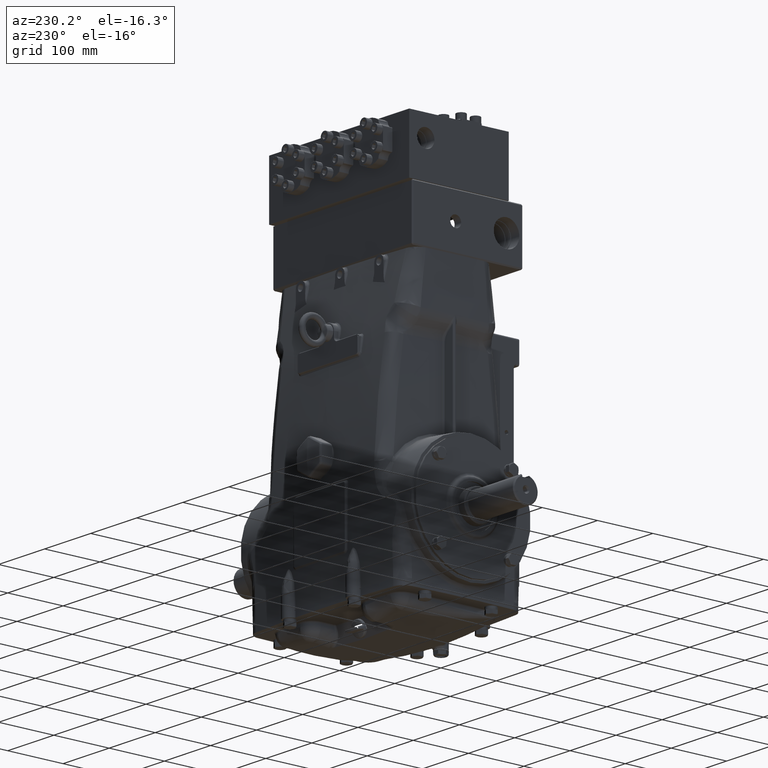
[diagram: clean part render]
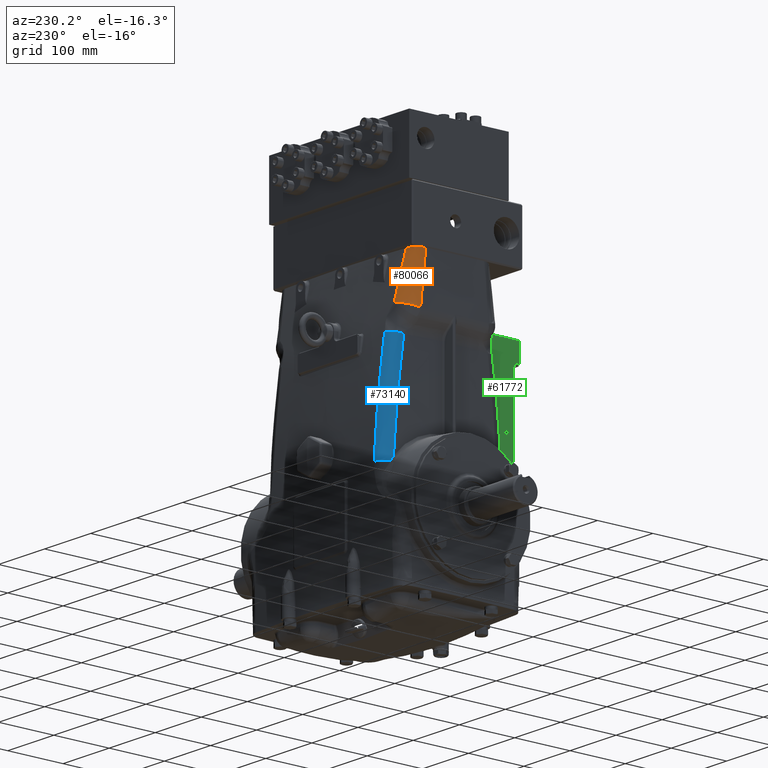
[diagram: same view with three faces highlighted in distinct colors, each labeled with its STEP entity id]
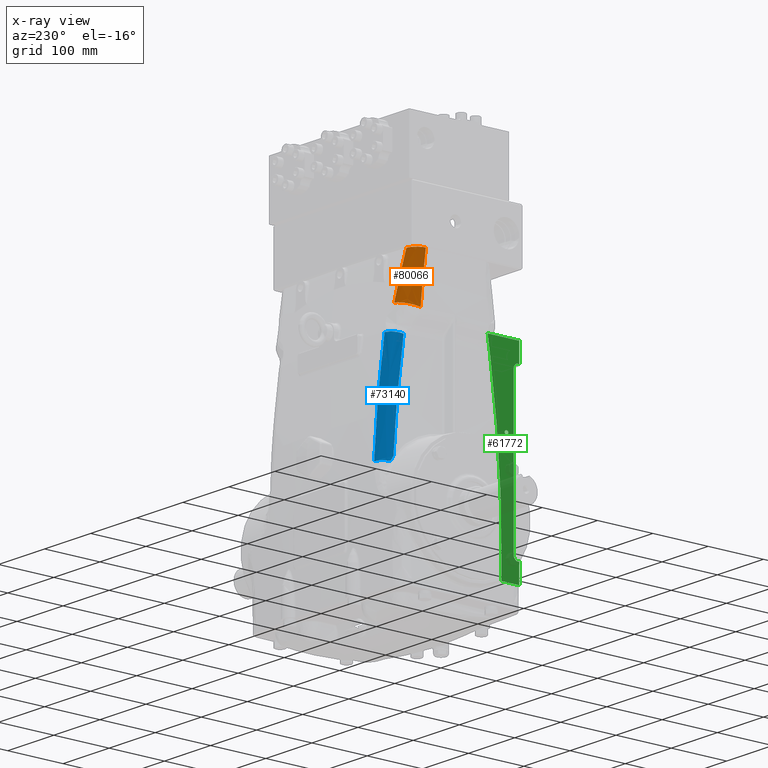
[diagram: x-ray of the same camera — body ghosted, the three highlighted faces saturated]
A machine part, auxiliary view with three faces highlighted in distinct colors.
The next image is the same camera in x-ray (body ghosted, the three faces saturated) — at least one of them is partly hidden behind the body in this view.
Their STEP definitions:

[orange] entity #80066 — the highlighted face is a freeform B-spline surface patch.
#303 = CARTESIAN_POINT ( 'NONE',  ( -5.907774054123752450, 2.293038025342771569, 12.51302298081366082 ) ) ;
#349 = CARTESIAN_POINT ( 'NONE',  ( -5.039213300599810097, 3.433290258325219835, 11.57723637475738698 ) ) ;
#604 = CARTESIAN_POINT ( 'NONE',  ( -5.869573299978710246, 3.410820849078799011, 11.44150744085811056 ) ) ;
#774 = EDGE_CURVE ( 'NONE', #74359, #17577, #12555, .T. ) ;
#1078 = CARTESIAN_POINT ( 'NONE',  ( -5.906987373075787140, 2.317205297167524325, 12.16278999478924128 ) ) ;
#1465 = CARTESIAN_POINT ( 'NONE',  ( -5.907265034704678008, 2.308704891830010375, 12.27424975218368886 ) ) ;
#1864 = CARTESIAN_POINT ( 'NONE',  ( -5.905078663283149787, 2.374872883555778191, 11.61408808050660291 ) ) ;
#2103 = ORIENTED_EDGE ( 'NONE', *, *, #774, .T. ) ;
#2373 = CARTESIAN_POINT ( 'NONE',  ( -5.101086199580545433, 3.058171706944638579, 13.71431557957002312 ) ) ;
#3176 = CARTESIAN_POINT ( 'NONE',  ( -4.926110220598099332, 3.314381504512866616, 12.39349772705937980 ) ) ;
#3565 = CARTESIAN_POINT ( 'NONE',  ( -5.128033741077783425, 3.012976016020138648, 13.93602834202075513 ) ) ;
#3870 = CARTESIAN_POINT ( 'NONE',  ( -4.876417189084683912, 3.476667728146269010, 11.45787284275026963 ) ) ;
#3965 = CARTESIAN_POINT ( 'NONE',  ( -4.926183590047786609, 3.314255839630638079, 12.39418344857252663 ) ) ;
#4467 = CARTESIAN_POINT ( 'NONE',  ( -5.508636203757916405, 2.744925502002867113, 14.76377952755905554 ) ) ;
#5156 = CARTESIAN_POINT ( 'NONE',  ( -5.912418051211069780, 2.144789058062345877, 14.33877539446498872 ) ) ;
#5563 = CARTESIAN_POINT ( 'NONE',  ( -5.912527729218598260, 2.141164361714797071, 14.36090416438256234 ) ) ;
#5611 = CARTESIAN_POINT ( 'NONE',  ( -5.216036395943292270, 3.382636811437145230, 11.54722049156790220 ) ) ;
#5878 = CARTESIAN_POINT ( 'NONE',  ( -5.873273453009383083, 3.331143079454431444, 11.91818957244767319 ) ) ;
#6008 = CARTESIAN_POINT ( 'NONE',  ( -5.076690051837042361, 3.425169474249933455, 11.57129412149316217 ) ) ;
#6094 = B_SPLINE_CURVE_WITH_KNOTS ( 'NONE', 3,
 ( #47816, #53509, #22716, #47417, #72124, #10543, #59976, #4467, #69221, #37626, #63155, #7651, #6845, #74497, #20215, #12536, #74107, #37232, #44514, #44917, #62752, #32349 ),
 .UNSPECIFIED., .F., .F.,
 ( 4, 1, 1, 2, 2, 1, 1, 1, 2, 2, 1, 2, 2, 4 ),
 ( 0.000000000000000000, 0.1250000000000143496, 0.1875000000000213440, 0.2187500000000246192, 0.2500000000000278666, 0.3750000000000383582, 0.4375000000000436873, 0.4687500000000462963, 0.4843750000000466849, 0.5000000000000469624, 0.6250000000000363043, 0.6875000000000304201, 0.7500000000000244249, 1.000000000000000000 ),
 .UNSPECIFIED. ) ;
#6272 = CARTESIAN_POINT ( 'NONE',  ( -5.912206697166975111, 2.151948128830377005, 14.30657796966575823 ) ) ;
#6353 = CARTESIAN_POINT ( 'NONE',  ( -5.907925864761807588, 2.288339149584246890, 12.59590867641229117 ) ) ;
#6400 = CARTESIAN_POINT ( 'NONE',  ( -5.263803864981984937, 3.363040057261277305, 11.53814410467326823 ) ) ;
#6657 = CARTESIAN_POINT ( 'NONE',  ( -5.185264604426030211, 2.772759438202923921, 15.09542930748762579 ) ) ;
#6740 = CARTESIAN_POINT ( 'NONE',  ( -5.908673567012193040, 2.265077751738842515, 13.03242445659455662 ) ) ;
#6845 = CARTESIAN_POINT ( 'NONE',  ( -5.689846565799667744, 2.602427342356467221, 14.76377952755905554 ) ) ;
#7597 = CARTESIAN_POINT ( 'NONE',  ( -5.592879451614143349, 3.139312626955532259, 11.46074997797244421 ) ) ;
#7651 = CARTESIAN_POINT ( 'NONE',  ( -5.681249131111601791, 2.611253824744535823, 14.76377952755905554 ) ) ;
#7945 = CARTESIAN_POINT ( 'NONE',  ( -5.906016381522832148, 2.346702566661738487, 11.84755615944344953 ) ) ;
#7990 = CARTESIAN_POINT ( 'NONE',  ( -5.688995835047186311, 3.033005360567477382, 11.43123038958168713 ) ) ;
#8404 = CARTESIAN_POINT ( 'NONE',  ( -5.397724550042958924, 3.295544224899292995, 11.51066844007581658 ) ) ;
#8453 = CARTESIAN_POINT ( 'NONE',  ( -5.163144061382888950, 2.947077230900319478, 14.25774304390924385 ) ) ;
#8802 = CARTESIAN_POINT ( 'NONE',  ( -5.901349931352192435, 2.484235759319941561, 11.31137959876972943 ) ) ;
#8853 = CARTESIAN_POINT ( 'NONE',  ( -4.925802573597842127, 3.314909096847209913, 12.39061829975569751 ) ) ;
#9201 = CARTESIAN_POINT ( 'NONE',  ( -5.593304604779966382, 3.138888309039629565, 11.46062691665236954 ) ) ;
#9248 = CARTESIAN_POINT ( 'NONE',  ( -4.922970669791747689, 3.319817653929403090, 12.36379080489113313 ) ) ;
#9644 = CARTESIAN_POINT ( 'NONE',  ( -5.132219056089101450, 3.005253596872516031, 13.97374185108037459 ) ) ;
#10038 = CARTESIAN_POINT ( 'NONE',  ( -4.902883452252071450, 3.358076888718606323, 12.15223902093835306 ) ) ;
#10543 = CARTESIAN_POINT ( 'NONE',  ( -5.442054174582965587, 2.776815326288587737, 14.76377952755906264 ) ) ;
#10755 = CARTESIAN_POINT ( 'NONE',  ( -4.875331744708049975, 3.450569755250787463, 11.61702798795573521 ) ) ;
#11241 = CARTESIAN_POINT ( 'NONE',  ( -5.908707279576093541, 2.264023335676851545, 13.05216452785212589 ) ) ;
#11640 = CARTESIAN_POINT ( 'NONE',  ( -5.907927011945045770, 2.288303641488663498, 12.59654247832490093 ) ) ;
#11695 = CARTESIAN_POINT ( 'NONE',  ( -5.236181685047011314, 3.374660730742089942, 11.54343982271980273 ) ) ;
#11730 = EDGE_CURVE ( 'NONE', #74379, #17577, #35956, .T. ) ;
#12045 = CARTESIAN_POINT ( 'NONE',  ( -5.910671417157693952, 2.201717068868905613, 13.90599976739307664 ) ) ;
#12353 = CARTESIAN_POINT ( 'NONE',  ( -5.868324098486308316, 3.436538707100978307, 11.28245888241146133 ) ) ;
#12440 = CARTESIAN_POINT ( 'NONE',  ( -5.907925971269326837, 2.288335852937914972, 12.59596694199654721 ) ) ;
#12483 = CARTESIAN_POINT ( 'NONE',  ( -5.251797107662055986, 3.368195592008888184, 11.54046286192467896 ) ) ;
#12536 = CARTESIAN_POINT ( 'NONE',  ( -5.776433591310897064, 2.499868863154867782, 14.76377952755905199 ) ) ;
#12555 = B_SPLINE_CURVE_WITH_KNOTS ( 'NONE', 3,
 ( #74055, #79723, #44067, #55456, #13278, #50544, #30323, #31121, #74452, #349, #37968, #12890, #18185, #62301, #19752, #61525, #48974, #25052, #6008, #67202, #56622, #80123, #67985, #5611, #11695, #61123, #12483, #37178, #61918, #6400, #49770, #18965, #43669, #75623, #52543, #26225, #8404, #33099, #20569, #14472, #69561, #57814, #58626, #44460, #51343, #77220, #69166, #7597, #13679, #9201, #63504, #7990, #14879, #44864, #21370, #32694, #45270, #8802, #76033 ),
 .UNSPECIFIED., .F., .F.,
 ( 4, 2, 2, 2, 2, 2, 1, 1, 1, 1, 1, 2, 2, 2, 2, 2, 1, 1, 1, 1, 1, 2, 2, 2, 2, 2, 1, 1, 1, 1, 1, 2, 2, 2, 2, 2, 4 ),
 ( 0.000000000000000000, 0.03124999999981475929, 0.06249999999962951858, 0.09374999999944327866, 0.1093749999993506306, 0.1171874999993038485, 0.1210937499992797567, 0.1230468749992682104, 0.1240234374992629507, 0.1245117187492604943, 0.1247558593742593147, 0.1248779296867587318, 0.1249999999992581490, 0.1874999999988087307, 0.2187499999985845212, 0.2343749999984722221, 0.2421874999984165167, 0.2460937499983881782, 0.2480468749983738008, 0.2490234374983683330, 0.2495117187483670285, 0.2497558593733663901, 0.2499999999983657517, 0.3749999999986121102, 0.4374999999987356780, 0.4687499999987971289, 0.4843749999988286592, 0.4921874999988432031, 0.4960937499988504751, 0.4980468749988536947, 0.4990234374988552490, 0.4995117187488564703, 0.4999999999988576915, 0.6249999999991432409, 0.7499999999994287903, 0.8749999999997143396, 1.000000000000000000 ),
 .UNSPECIFIED. ) ;
#12754 = CARTESIAN_POINT ( 'NONE',  ( -5.184315719215649487, 2.805581248994312826, 14.93764455450672379 ) ) ;
#12839 = CARTESIAN_POINT ( 'NONE',  ( -5.912074343975505464, 2.156137704011513279, 14.26832902117558888 ) ) ;
#12890 = CARTESIAN_POINT ( 'NONE',  ( -5.057604005018011328, 3.429471160723429168, 11.57434702457179299 ) ) ;
#13278 = CARTESIAN_POINT ( 'NONE',  ( -4.915704080304775125, 3.450629435604365636, 11.59536634616097750 ) ) ;
#13634 = CARTESIAN_POINT ( 'NONE',  ( -5.907542385340669888, 2.300186964994692662, 12.39651488313214323 ) ) ;
#13679 = CARTESIAN_POINT ( 'NONE',  ( -5.593190843559621150, 3.139001879460302291, 11.46065985045443014 ) ) ;
#14294 = VERTEX_POINT ( 'NONE', #30016 ) ;
#14472 = CARTESIAN_POINT ( 'NONE',  ( -5.540194044629090264, 3.188570483082967311, 11.47544199302100054 ) ) ;
#14879 = CARTESIAN_POINT ( 'NONE',  ( -5.766083086402627345, 2.916811684383569414, 11.40227389794569746 ) ) ;
#14929 = CARTESIAN_POINT ( 'NONE',  ( -5.054124166664509588, 3.128921712657291909, 13.36267617988929501 ) ) ;
#15727 = CARTESIAN_POINT ( 'NONE',  ( -5.008271077049807118, 3.192593720619085307, 13.03782279434682323 ) ) ;
#16538 = CARTESIAN_POINT ( 'NONE',  ( -5.132283268173792656, 3.005132910666354462, 13.97433101746153383 ) ) ;
#17577 = VERTEX_POINT ( 'NONE', #42262 ) ;
#17646 = CARTESIAN_POINT ( 'NONE',  ( -5.903245328280699589, 2.429027964402563633, 11.28052331987952073 ) ) ;
#17733 = CARTESIAN_POINT ( 'NONE',  ( -5.908251518864884311, 2.278240409770262431, 12.78495753448111749 ) ) ;
#18132 = CARTESIAN_POINT ( 'NONE',  ( -5.908690296882330273, 2.264554550061988802, 13.04224164656727680 ) ) ;
#18185 = CARTESIAN_POINT ( 'NONE',  ( -5.063280661080808542, 3.428237002143605494, 11.57344633590616745 ) ) ;
#18435 = CARTESIAN_POINT ( 'NONE',  ( -5.870858134759076918, 3.384637623483602198, 11.60049129678033708 ) ) ;
#18528 = CARTESIAN_POINT ( 'NONE',  ( -5.908809579912570165, 2.260821146657628233, 13.11103706078430342 ) ) ;
#18834 = CARTESIAN_POINT ( 'NONE',  ( -4.986560622080855154, 3.222674255138423316, 12.88575456654492513 ) ) ;
#18916 = CARTESIAN_POINT ( 'NONE',  ( -5.908674393114756285, 2.265051919040012240, 13.03291019620245450 ) ) ;
#18965 = CARTESIAN_POINT ( 'NONE',  ( -5.265639047022845354, 3.362237185801131290, 11.53778733356411301 ) ) ;
#19225 = CARTESIAN_POINT ( 'NONE',  ( -5.874413212496081726, 3.303839795669138546, 12.07691178095931228 ) ) ;
#19309 = CARTESIAN_POINT ( 'NONE',  ( -5.910774986753275506, 2.198382997643469228, 13.93728534927780416 ) ) ;
#19752 = CARTESIAN_POINT ( 'NONE',  ( -5.073484849247628325, 3.425916569317435822, 11.57181081394647038 ) ) ;
#20162 = B_SPLINE_CURVE_WITH_KNOTS ( 'NONE', 3,
 ( #57869, #33952, #34350, #64361, #10038, #77273, #40031, #9248, #78071, #21818, #8853, #46920, #3176, #34748, #3965, #27889, #76883, #22621, #70822, #53411, #21419, #15727, #51812, #47323, #72024, #77673, #71226, #45727, #14929, #59073, #2373, #46520, #46121, #71628, #3565, #58275, #40430, #39628, #65167, #9644, #16538, #21017, #28285, #63970, #8453, #33151, #33555 ),
 .UNSPECIFIED., .F., .F.,
 ( 4, 2, 1, 1, 1, 1, 1, 1, 1, 1, 1, 2, 2, 2, 2, 1, 1, 1, 1, 2, 2, 2, 2, 1, 1, 1, 1, 1, 1, 1, 1, 2, 2, 4 ),
 ( 0.000000000000000000, 0.1250000000017194302, 0.1875000000025781322, 0.2187500000030075109, 0.2343750000032231162, 0.2421875000033309744, 0.2460937500033848480, 0.2480468750034126590, 0.2490234375034266201, 0.2495117187534326708, 0.2497558593784356129, 0.2498779296909361680, 0.2500000000034366954, 0.3750000000016938118, 0.4375000000008223977, 0.4687500000003866352, 0.4843750000001679767, 0.4921875000000585643, 0.4960937500000038303, 0.4980468749999764633, 0.4999999999999490963, 0.6249999999981354915, 0.6874999999972277731, 0.7187499999967739139, 0.7343749999965456521, 0.7421874999964314101, 0.7460937499963758990, 0.7480468749963467001, 0.7490234374963335995, 0.7495117187463269381, 0.7497558593713251618, 0.7498779296838258279, 0.7499999999963264941, 1.000000000000000000 ),
 .UNSPECIFIED. ) ;
#20215 = CARTESIAN_POINT ( 'NONE',  ( -5.731785825640779208, 2.557481735829569391, 14.76377952755905376 ) ) ;
#20569 = CARTESIAN_POINT ( 'NONE',  ( -5.504927850879925977, 3.218393083883500871, 11.48473948779401610 ) ) ;
#20915 = CARTESIAN_POINT ( 'NONE',  ( -5.907053902575530202, 2.315170991092177388, 12.18852758404067060 ) ) ;
#21017 = CARTESIAN_POINT ( 'NONE',  ( -5.132310754040153356, 3.005081227557392154, 13.97458332228943334 ) ) ;
#21370 = CARTESIAN_POINT ( 'NONE',  ( -5.849289238964955118, 2.732127946368104077, 11.36064601824177167 ) ) ;
#21419 = CARTESIAN_POINT ( 'NONE',  ( -5.000078849880988940, 3.204082450246543701, 12.97847648007551236 ) ) ;
#21818 = CARTESIAN_POINT ( 'NONE',  ( -4.925393650704766202, 3.315612048474582352, 12.38678058458093645 ) ) ;
#22482 = CARTESIAN_POINT ( 'NONE',  ( -4.877003644330629939, 3.452992667884452693, 11.60066926512785024 ) ) ;
#22621 = CARTESIAN_POINT ( 'NONE',  ( -4.949172090564206705, 3.277242264015674866, 12.59473463185866926 ) ) ;
#22716 = CARTESIAN_POINT ( 'NONE',  ( -5.304503685460725038, 2.826024602386072448, 14.76377952755905554 ) ) ;
#23717 = CARTESIAN_POINT ( 'NONE',  ( -5.906274471226467426, 2.338935930794351581, 11.91053809308487743 ) ) ;
#23803 = CARTESIAN_POINT ( 'NONE',  ( -5.907932892053354479, 2.288121631570745773, 12.59986493567412857 ) ) ;
#24199 = CARTESIAN_POINT ( 'NONE',  ( -5.911119552194555204, 2.187260002439114004, 14.03590544019855457 ) ) ;
#24521 = CARTESIAN_POINT ( 'NONE',  ( -5.907646200348552590, 2.297148171815059925, 12.38762160986817484 ) ) ;
#24609 = CARTESIAN_POINT ( 'NONE',  ( -5.912411521591919517, 2.145004686772696623, 14.33744058256331222 ) ) ;
#25005 = CARTESIAN_POINT ( 'NONE',  ( -5.911609795965371283, 2.171353261600236007, 14.16385810397932410 ) ) ;
#25052 = CARTESIAN_POINT ( 'NONE',  ( -5.076442746031371023, 3.425227415401971953, 11.57133403669872251 ) ) ;
#25299 = CARTESIAN_POINT ( 'NONE',  ( -5.175307605351867402, 2.904005048904589881, 14.46456208329546733 ) ) ;
#25380 = CARTESIAN_POINT ( 'NONE',  ( -5.909797359077495926, 2.229702078746513383, 13.60556097325805069 ) ) ;
#25776 = CARTESIAN_POINT ( 'NONE',  ( -5.906983724185893792, 2.317316826873552227, 12.16139571799301500 ) ) ;
#26225 = CARTESIAN_POINT ( 'NONE',  ( -5.335439306880227051, 3.331591097413252989, 11.52420057679546694 ) ) ;
#26579 = CARTESIAN_POINT ( 'NONE',  ( -5.903375805935151099, 2.425076266536521086, 11.30089893811133983 ) ) ;
#26751 =( BOUNDED_SURFACE ( )  B_SPLINE_SURFACE ( 2, 3, ( 
 ( #34257, #3870, #10755, #60192, #41941, #66672, #18834, #62168, #55715, #42342, #25299, #74694, #12754, #6657 ),
 ( #12353, #604, #18435, #5878, #19225, #43524, #61389, #79176, #50014, #31372, #73141, #67071, #54921, #43144 ),
 ( #79989, #17646, #68236, #37831, #23717, #24521, #54517, #30579, #67859, #37437, #6272, #36259, #55318, #37044 ) ),
 .UNSPECIFIED., .F., .F., .F. ) 
 B_SPLINE_SURFACE_WITH_KNOTS ( ( 3, 3 ),
 ( 4, 2, 2, 2, 2, 2, 4 ),
 ( 0.000000000000000000, 1.000000000000000000 ),
 ( 0.03185260743067193367, 0.04412556194337072246, 0.05639851645606950431, 0.08094442548146707495, 0.1054903345068646386, 0.1177632890195634274, 0.1300362435322622023 ),
 .UNSPECIFIED. ) 
 GEOMETRIC_REPRESENTATION_ITEM ( )  RATIONAL_B_SPLINE_SURFACE ( (
 ( 1.000000000000000000, 1.000000000000000000, 1.000000000000000000, 1.000000000000000000, 1.000000000000000000, 1.000000000000000000, 1.000000000000000000, 1.000000000000000000, 1.000000000000000000, 1.000000000000000000, 1.000000000000000000, 1.000000000000000000, 1.000000000000000000, 1.000000000000000000),
 ( 0.7423009612072126728, 0.7421802780501942642, 0.7420249435830863494, 0.7418429153053469616, 0.7418027444488081157, 0.7417807243793537175, 0.7418971107712801771, 0.7421054116588654548, 0.7421973114124104098, 0.7421068119988769585, 0.7420386468702881988, 0.7417914812854551343, 0.7416140992102079332, 0.7414750453695108101),
 ( 1.000000000000000000, 1.000000000000000000, 1.000000000000000000, 1.000000000000000000, 1.000000000000000000, 1.000000000000000000, 1.000000000000000000, 1.000000000000000000, 1.000000000000000000, 1.000000000000000000, 1.000000000000000000, 1.000000000000000000, 1.000000000000000000, 1.000000000000000000) ) ) 
 REPRESENTATION_ITEM ( '' )  SURFACE ( )  );
#27889 = CARTESIAN_POINT ( 'NONE',  ( -4.926203589867667709, 3.314221595435139278, 12.39437030249005467 ) ) ;
#28285 = CARTESIAN_POINT ( 'NONE',  ( -5.132329070484742850, 3.005046780940920925, 13.97475148216372531 ) ) ;
#30016 = CARTESIAN_POINT ( 'NONE',  ( -5.183405415249797699, 2.841738081440412511, 14.76377952755909462 ) ) ;
#30272 = CARTESIAN_POINT ( 'NONE',  ( -5.910887622280017517, 2.194752194930855271, 13.97041162654521962 ) ) ;
#30323 = CARTESIAN_POINT ( 'NONE',  ( -4.969121482321285477, 3.445069723862342670, 11.58781616345203958 ) ) ;
#30579 = CARTESIAN_POINT ( 'NONE',  ( -5.909213097416705196, 2.248207726002552587, 13.34996992752380507 ) ) ;
#30670 = CARTESIAN_POINT ( 'NONE',  ( -5.914316301299402667, 2.081233267886914540, 14.67785554985681529 ) ) ;
#31070 = CARTESIAN_POINT ( 'NONE',  ( -5.908673938971610085, 2.265066120374979342, 13.03264317263259819 ) ) ;
#31121 = CARTESIAN_POINT ( 'NONE',  ( -5.005278436745298265, 3.439498342552275378, 11.58243594878231519 ) ) ;
#31372 = CARTESIAN_POINT ( 'NONE',  ( -5.889655872968184269, 2.886672148875563781, 14.29218283121253208 ) ) ;
#31462 = CARTESIAN_POINT ( 'NONE',  ( -5.908434182414926461, 2.272563384559500133, 12.89164449754916575 ) ) ;
#31572 = EDGE_LOOP ( 'NONE', ( #2103, #71474, #67147, #64755 ) ) ;
#32349 = CARTESIAN_POINT ( 'NONE',  ( -5.914849519459009386, 2.062923769285555764, 14.76377952755905376 ) ) ;
#32694 = CARTESIAN_POINT ( 'NONE',  ( -5.868295620743871233, 2.669366735757566111, 11.34750734978512199 ) ) ;
#33019 = CARTESIAN_POINT ( 'NONE',  ( -5.914849519459009386, 2.062923769285555764, 14.76377952755905376 ) ) ;
#33099 = CARTESIAN_POINT ( 'NONE',  ( -5.479555298346567405, 3.238102569896509575, 11.49112732293715489 ) ) ;
#33151 = CARTESIAN_POINT ( 'NONE',  ( -5.180137066221424114, 2.892442693654131869, 14.52066343965347528 ) ) ;
#33458 = CARTESIAN_POINT ( 'NONE',  ( -5.907124578004150806, 2.313008229074265287, 12.21653243246279352 ) ) ;
#33555 = CARTESIAN_POINT ( 'NONE',  ( -5.183405415249797699, 2.841738081440412511, 14.76377952755909462 ) ) ;
#33952 = CARTESIAN_POINT ( 'NONE',  ( -4.878332367497830724, 3.432379729718026073, 11.72482601415763170 ) ) ;
#34257 = CARTESIAN_POINT ( 'NONE',  ( -4.875549008008499996, 3.502405908729313122, 11.29867192287536248 ) ) ;
#34350 = CARTESIAN_POINT ( 'NONE',  ( -4.883125874361775587, 3.410551737334837963, 11.85304194537543765 ) ) ;
#34748 = CARTESIAN_POINT ( 'NONE',  ( -4.926154238370732408, 3.314306107129415757, 12.39390915531052606 ) ) ;
#35956 = B_SPLINE_CURVE_WITH_KNOTS ( 'NONE', 3,
 ( #66756, #30670, #68325, #61867, #67543, #48519, #5563, #73617, #62253, #5156, #24609, #79672, #49326, #12839, #25005, #24199, #30272, #19309, #49716, #74403, #55008, #12045, #74783, #42431, #54598, #80076, #25380, #43620, #74009, #18528, #50104, #11241, #18132, #60674, #48922, #43228, #18916, #31070, #37520, #6740, #31462, #17733, #79270, #73219, #36743, #23803, #67154, #11640, #67943, #61480, #12440, #36345, #37128, #6353, #55800, #303, #13634, #1465, #33458, #20915, #68719, #58173, #56567, #1078, #45619, #63455, #25776, #75174, #44013, #7945, #70324, #39120, #44814, #50492, #38312, #50895, #39529, #62650, #1864, #56970, #26579 ),
 .UNSPECIFIED., .F., .F.,
 ( 4, 2, 1, 1, 1, 1, 1, 1, 2, 2, 1, 1, 1, 1, 1, 1, 1, 1, 2, 2, 1, 1, 1, 1, 1, 1, 1, 1, 1, 1, 1, 2, 2, 2, 1, 1, 1, 1, 1, 1, 1, 1, 1, 2, 2, 1, 1, 1, 1, 1, 1, 1, 1, 2, 2, 1, 1, 1, 1, 1, 1, 1, 2, 2, 4 ),
 ( 0.000000000000000000, 0.06250000000417306467, 0.09375000000626051988, 0.1093750000073052536, 0.1171875000078276413, 0.1210937500080877111, 0.1230468750082188978, 0.1240234375082833046, 0.1245117187583155011, 0.1250000000083477114, 0.1875000000124950605, 0.2187500000145687351, 0.2343750000156064606, 0.2421875000161244351, 0.2460937500163843106, 0.2480468750165142622, 0.2490234375165783498, 0.2495117187666103797, 0.2497558593916264225, 0.2500000000166424097, 0.3750000000251201837, 0.4375000000293599589, 0.4687500000314789861, 0.4843750000325385274, 0.4921875000330675487, 0.4960937500333313377, 0.4980468750334631767, 0.4990234375335290684, 0.4995117187835613204, 0.4997558594085774186, 0.4998779297210862449, 0.4999389648773399641, 0.5000000000335935724, 0.5625000000370895537, 0.5937500000388373778, 0.6093750000397131217, 0.6171875000401509936, 0.6210937500403699296, 0.6230468750404793976, 0.6240234375405242506, 0.6245117187905466771, 0.6247558594155705469, 0.6248779297280825373, 0.6249389648843248768, 0.6250000000405671052, 0.6875000000336500827, 0.7187500000301906278, 0.7343750000284609003, 0.7421875000275949263, 0.7460937500271619394, 0.7480468750269454459, 0.7490234375268360889, 0.7495117187767814659, 0.7497558594017541544, 0.7500000000267267319, 0.8125000000201291206, 0.8437500000168303149, 0.8593750000151799684, 0.8671875000143547396, 0.8710937500139421807, 0.8730468750137347911, 0.8740234375136310963, 0.8745117187635792488, 0.8750000000135274014, 1.000000000000000000 ),
 .UNSPECIFIED. ) ;
#36259 = CARTESIAN_POINT ( 'NONE',  ( -5.913921404336148768, 2.094745928070980590, 14.62084472770812837 ) ) ;
#36345 = CARTESIAN_POINT ( 'NONE',  ( -5.907925908589608532, 2.288337793016503863, 12.59593263261130502 ) ) ;
#36743 = CARTESIAN_POINT ( 'NONE',  ( -5.907946300177029819, 2.287706566398291397, 12.60754454059181207 ) ) ;
#37044 = CARTESIAN_POINT ( 'NONE',  ( -5.915906921647165362, 2.026289427921009079, 14.93580738324496693 ) ) ;
#37128 = CARTESIAN_POINT ( 'NONE',  ( -5.907925882226328085, 2.288338609018522263, 12.59591822003274331 ) ) ;
#37178 = CARTESIAN_POINT ( 'NONE',  ( -5.256284641337158448, 3.366293884187553154, 11.53960024432015175 ) ) ;
#37232 = CARTESIAN_POINT ( 'NONE',  ( -5.835122323459665417, 2.393378446299524676, 14.76377952755905376 ) ) ;
#37437 = CARTESIAN_POINT ( 'NONE',  ( -5.911517264726246168, 2.174410796057816952, 14.14824494702000734 ) ) ;
#37520 = CARTESIAN_POINT ( 'NONE',  ( -5.908673636214894387, 2.265075587733624385, 13.03246514808705747 ) ) ;
#37626 = CARTESIAN_POINT ( 'NONE',  ( -5.636989239988458245, 2.653590017885945063, 14.76377952755905199 ) ) ;
#37831 = CARTESIAN_POINT ( 'NONE',  ( -5.905706997040113038, 2.356122341130363118, 11.75214630435105434 ) ) ;
#37968 = CARTESIAN_POINT ( 'NONE',  ( -5.046427835811078566, 3.431841198207233212, 11.57611074950587948 ) ) ;
#38312 = CARTESIAN_POINT ( 'NONE',  ( -5.905568590761821390, 2.360173326528731685, 11.73278180184143693 ) ) ;
#39120 = CARTESIAN_POINT ( 'NONE',  ( -5.905672257207958076, 2.357060701444123385, 11.75828390509639831 ) ) ;
#39529 = CARTESIAN_POINT ( 'NONE',  ( -5.905557928655715827, 2.360493260507960933, 11.73019312247536305 ) ) ;
#39628 = CARTESIAN_POINT ( 'NONE',  ( -5.131831588451555959, 3.005980297548772828, 13.97019410945438267 ) ) ;
#40031 = CARTESIAN_POINT ( 'NONE',  ( -4.919821522116118118, 3.325392908058514951, 12.33323513837594199 ) ) ;
#40430 = CARTESIAN_POINT ( 'NONE',  ( -5.131309111114502386, 3.006956118024851854, 13.96542980457051364 ) ) ;
#41941 = CARTESIAN_POINT ( 'NONE',  ( -4.897046326653974546, 3.368686379052702851, 12.09363941883155036 ) ) ;
#42262 = CARTESIAN_POINT ( 'NONE',  ( -5.903375805935151099, 2.425076266536521086, 11.30089893811133983 ) ) ;
#42342 = CARTESIAN_POINT ( 'NONE',  ( -5.164541999858275112, 2.936738434533107789, 14.30678451208300217 ) ) ;
#42431 = CARTESIAN_POINT ( 'NONE',  ( -5.910666534261126870, 2.201874150668091890, 13.90450443823717919 ) ) ;
#43144 = CARTESIAN_POINT ( 'NONE',  ( -5.895960417086011596, 2.723600409506862885, 15.08097490665740459 ) ) ;
#43228 = CARTESIAN_POINT ( 'NONE',  ( -5.908675452838605402, 2.265018780512672247, 13.03353315845955862 ) ) ;
#43524 = CARTESIAN_POINT ( 'NONE',  ( -5.877715577694672788, 3.220348943347427273, 12.55273612131199101 ) ) ;
#43620 = CARTESIAN_POINT ( 'NONE',  ( -5.909225665884736856, 2.247756914242586390, 13.33513139633698152 ) ) ;
#43669 = CARTESIAN_POINT ( 'NONE',  ( -5.265899730175354065, 3.362122853462971683, 11.53773661014142071 ) ) ;
#44013 = CARTESIAN_POINT ( 'NONE',  ( -5.906448200662091530, 2.333647360579240715, 11.97100916173336671 ) ) ;
#44067 = CARTESIAN_POINT ( 'NONE',  ( -4.884491138399154941, 3.452667283638722662, 11.59959100200565985 ) ) ;
#44460 = CARTESIAN_POINT ( 'NONE',  ( -5.584699211188659085, 3.147399294075683862, 11.46310489461806625 ) ) ;
#44514 = CARTESIAN_POINT ( 'NONE',  ( -5.845411006186185254, 2.371019325491242391, 14.76377952755905376 ) ) ;
#44814 = CARTESIAN_POINT ( 'NONE',  ( -5.905613202200761691, 2.358834284329041076, 11.74368165415275733 ) ) ;
#44864 = CARTESIAN_POINT ( 'NONE',  ( -5.798189793312924500, 2.855859596083306418, 11.38803072339823785 ) ) ;
#44917 = CARTESIAN_POINT ( 'NONE',  ( -5.891921031949348908, 2.256901848154480028, 14.76377952755904666 ) ) ;
#45270 = CARTESIAN_POINT ( 'NONE',  ( -5.894316964891314292, 2.545416920226685864, 11.32287361090748057 ) ) ;
#45619 = CARTESIAN_POINT ( 'NONE',  ( -5.906985468353179058, 2.317263516150661840, 12.16206202018411453 ) ) ;
#45727 = CARTESIAN_POINT ( 'NONE',  ( -5.028635759224336255, 3.164264603040205515, 13.18275471358236572 ) ) ;
#46121 = CARTESIAN_POINT ( 'NONE',  ( -5.118676420831977047, 3.029335967139364705, 13.85598782958837560 ) ) ;
#46520 = CARTESIAN_POINT ( 'NONE',  ( -5.108710422953373076, 3.045965539333792549, 13.77439635787910888 ) ) ;
#46920 = CARTESIAN_POINT ( 'NONE',  ( -4.926007580662856711, 3.314557404689307152, 12.39253780929991144 ) ) ;
#47323 = CARTESIAN_POINT ( 'NONE',  ( -5.023684900721711699, 3.171134934388645910, 13.14773324124499609 ) ) ;
#47417 = CARTESIAN_POINT ( 'NONE',  ( -5.385453150630775454, 2.800098155554065826, 14.76377952755905376 ) ) ;
#47816 = CARTESIAN_POINT ( 'NONE',  ( -5.183405415249797699, 2.841738081440412511, 14.76377952755909462 ) ) ;
#48519 = CARTESIAN_POINT ( 'NONE',  ( -5.912659975979523530, 2.136786969310013440, 14.38694125500877874 ) ) ;
#48922 = CARTESIAN_POINT ( 'NONE',  ( -5.908677572512333498, 2.264952495141791200, 13.03477871201685723 ) ) ;
#48974 = CARTESIAN_POINT ( 'NONE',  ( -5.076071958719958310, 3.425314219047164155, 11.57139387075943837 ) ) ;
#49326 = CARTESIAN_POINT ( 'NONE',  ( -5.912405410717039622, 2.145206474836610866, 14.33619000024514634 ) ) ;
#49716 = CARTESIAN_POINT ( 'NONE',  ( -5.910719505151603492, 2.200169575731908633, 13.92062736803391942 ) ) ;
#49770 = CARTESIAN_POINT ( 'NONE',  ( -5.265029300852948069, 3.362504326215310257, 11.53790593231965467 ) ) ;
#50014 = CARTESIAN_POINT ( 'NONE',  ( -5.886154691161721964, 2.981703273831198597, 13.81842915313974807 ) ) ;
#50104 = CARTESIAN_POINT ( 'NONE',  ( -5.908741302749783486, 2.262958777949713784, 13.07191532545369661 ) ) ;
#50492 = CARTESIAN_POINT ( 'NONE',  ( -5.905583491758536141, 2.359726135792812762, 11.73641014919317271 ) ) ;
#50544 = CARTESIAN_POINT ( 'NONE',  ( -4.948825239833901435, 3.447401824124947556, 11.59071699442808345 ) ) ;
#50895 = CARTESIAN_POINT ( 'NONE',  ( -5.905562194806917020, 2.360365250773306389, 11.73122838264670875 ) ) ;
#51343 = CARTESIAN_POINT ( 'NONE',  ( -5.589124511149144325, 3.143043226850921190, 11.46183403828906755 ) ) ;
#51812 = CARTESIAN_POINT ( 'NONE',  ( -5.018444413985876373, 3.178418012351344135, 13.11052001769411390 ) ) ;
#51921 = EDGE_CURVE ( 'NONE', #14294, #74379, #6094, .T. ) ;
#52543 = CARTESIAN_POINT ( 'NONE',  ( -5.266111671038387954, 3.362029867289029639, 11.53769536598511714 ) ) ;
#53411 = CARTESIAN_POINT ( 'NONE',  ( -4.984399135822429550, 3.226196166578896740, 12.86374097986380072 ) ) ;
#53509 = CARTESIAN_POINT ( 'NONE',  ( -5.232534852334648434, 2.838158930383748224, 14.76377952755905554 ) ) ;
#54517 = CARTESIAN_POINT ( 'NONE',  ( -5.908122798201683068, 2.282299193488263267, 12.70826722450663482 ) ) ;
#54598 = CARTESIAN_POINT ( 'NONE',  ( -5.910665271862801440, 2.201914760178965036, 13.90411753428069375 ) ) ;
#54921 = CARTESIAN_POINT ( 'NONE',  ( -5.894693119851568852, 2.756471380224183587, 14.92311084807128374 ) ) ;
#55008 = CARTESIAN_POINT ( 'NONE',  ( -5.910678260647441284, 2.201496899145066966, 13.90809238845904972 ) ) ;
#55318 = CARTESIAN_POINT ( 'NONE',  ( -5.914956072182287805, 2.059530228165542542, 14.77778041190654434 ) ) ;
#55456 = CARTESIAN_POINT ( 'NONE',  ( -4.902873697673988396, 3.451522551926476279, 11.59711451997821108 ) ) ;
#55715 = CARTESIAN_POINT ( 'NONE',  ( -5.120710757001378788, 3.034264079367035016, 13.83342152667016833 ) ) ;
#55800 = CARTESIAN_POINT ( 'NONE',  ( -5.907925995699470967, 2.288335096773560728, 12.59598016377677077 ) ) ;
#56567 = CARTESIAN_POINT ( 'NONE',  ( -5.906991816552033647, 2.317069474539982465, 12.16449026980165726 ) ) ;
#56622 = CARTESIAN_POINT ( 'NONE',  ( -5.117759314549691574, 3.415532350876082646, 11.56466308199369131 ) ) ;
#56970 = CARTESIAN_POINT ( 'NONE',  ( -5.904359374784609926, 2.396358114100670456, 11.47133474665070274 ) ) ;
#57751 = EDGE_CURVE ( 'NONE', #74359, #14294, #20162, .T. ) ;
#57814 = CARTESIAN_POINT ( 'NONE',  ( -5.567744144523757654, 3.163609631545833079, 11.46789381573073463 ) ) ;
#57869 = CARTESIAN_POINT ( 'NONE',  ( -4.877003644330629939, 3.452992667884452693, 11.60066926512785024 ) ) ;
#58173 = CARTESIAN_POINT ( 'NONE',  ( -5.907000699998951276, 2.316797915951817721, 12.16789749022835032 ) ) ;
#58275 = CARTESIAN_POINT ( 'NONE',  ( -5.130244085217400496, 3.008931348717934107, 13.95578467933275135 ) ) ;
#58626 = CARTESIAN_POINT ( 'NONE',  ( -5.575704147121677501, 3.156121584029052851, 11.46566606688705647 ) ) ;
#59073 = CARTESIAN_POINT ( 'NONE',  ( -5.075266311196011237, 3.098027341864302286, 13.51699441553819980 ) ) ;
#59976 = CARTESIAN_POINT ( 'NONE',  ( -5.453332407580689711, 2.771675151372924528, 14.76377952755905376 ) ) ;
#60192 = CARTESIAN_POINT ( 'NONE',  ( -4.885991698342642131, 3.396556321547359314, 11.93490414467519223 ) ) ;
#60674 = CARTESIAN_POINT ( 'NONE',  ( -5.908681812763847851, 2.264819891135029462, 13.03726833530383367 ) ) ;
#61123 = CARTESIAN_POINT ( 'NONE',  ( -5.242603062963129723, 3.372041015670286690, 11.54222194840788340 ) ) ;
#61389 = CARTESIAN_POINT ( 'NONE',  ( -5.879767995214635334, 3.162587132995285710, 12.86949753468266167 ) ) ;
#61480 = CARTESIAN_POINT ( 'NONE',  ( -5.907926101290532195, 2.288331828485016040, 12.59603828090800448 ) ) ;
#61525 = CARTESIAN_POINT ( 'NONE',  ( -5.075207988324224040, 3.425516005694789978, 11.57153321256096312 ) ) ;
#61867 = CARTESIAN_POINT ( 'NONE',  ( -5.913229139133507672, 2.117843687238893935, 14.49218836720061887 ) ) ;
#61918 = CARTESIAN_POINT ( 'NONE',  ( -5.261329206356101906, 3.364117242922211037, 11.53862433614557403 ) ) ;
#62168 = CARTESIAN_POINT ( 'NONE',  ( -5.076100908187021865, 3.098377580161391975, 13.51780179869366805 ) ) ;
#62253 = CARTESIAN_POINT ( 'NONE',  ( -5.912433373583989571, 2.144282988386367883, 14.34189929391718721 ) ) ;
#62301 = CARTESIAN_POINT ( 'NONE',  ( -5.070057791467116104, 3.426705746314662626, 11.57236170227895933 ) ) ;
#62650 = CARTESIAN_POINT ( 'NONE',  ( -5.905555514685309149, 2.360565690588433352, 11.72960788464305715 ) ) ;
#62752 = CARTESIAN_POINT ( 'NONE',  ( -5.911966328789128866, 2.161811155246353255, 14.76377952755905376 ) ) ;
#63155 = CARTESIAN_POINT ( 'NONE',  ( -5.668229812852135119, 2.624319720700929448, 14.76377952755905376 ) ) ;
#63455 = CARTESIAN_POINT ( 'NONE',  ( -5.906984198454624746, 2.317302330869617233, 12.16157686259979265 ) ) ;
#63504 = CARTESIAN_POINT ( 'NONE',  ( -5.644013583242527332, 3.088221399019464464, 11.44593957923513727 ) ) ;
#63970 = CARTESIAN_POINT ( 'NONE',  ( -5.132332338285701567, 3.005040636140080768, 13.97478147962561579 ) ) ;
#64361 = CARTESIAN_POINT ( 'NONE',  ( -4.895443100790449087, 3.375888775398935504, 12.05148655908797473 ) ) ;
#64755 = ORIENTED_EDGE ( 'NONE', *, *, #57751, .F. ) ;
#65074 = FACE_OUTER_BOUND ( 'NONE', #31572, .T. ) ;
#65167 = CARTESIAN_POINT ( 'NONE',  ( -5.132090318331822054, 3.005495338389349236, 13.97256169784786728 ) ) ;
#66672 = CARTESIAN_POINT ( 'NONE',  ( -4.941627852679784993, 3.282857233909547645, 12.56932634269046822 ) ) ;
#66756 = CARTESIAN_POINT ( 'NONE',  ( -5.914849519459009386, 2.062923769285555764, 14.76377952755905376 ) ) ;
#67071 = CARTESIAN_POINT ( 'NONE',  ( -5.893380228565853862, 2.789413303507760400, 14.76564271353230318 ) ) ;
#67147 = ORIENTED_EDGE ( 'NONE', *, *, #51921, .F. ) ;
#67154 = CARTESIAN_POINT ( 'NONE',  ( -5.907928574215944195, 2.288255284748716978, 12.59741784540901932 ) ) ;
#67202 = CARTESIAN_POINT ( 'NONE',  ( -5.076857798979546921, 3.425130134077910338, 11.57126704074311796 ) ) ;
#67543 = CARTESIAN_POINT ( 'NONE',  ( -5.912946418877834454, 2.127280557214457968, 14.44140605342365902 ) ) ;
#67859 = CARTESIAN_POINT ( 'NONE',  ( -5.909828517264556602, 2.228966093811306948, 13.67102729412266626 ) ) ;
#67943 = CARTESIAN_POINT ( 'NONE',  ( -5.907926379979780762, 2.288323202396558287, 12.59619183929495279 ) ) ;
#67985 = CARTESIAN_POINT ( 'NONE',  ( -5.201430264641836665, 3.388111401472180706, 11.54991055314138038 ) ) ;
#68236 = CARTESIAN_POINT ( 'NONE',  ( -5.904205780340020304, 2.400825583751367898, 11.43709204300554738 ) ) ;
#68325 = CARTESIAN_POINT ( 'NONE',  ( -5.913842805634069499, 2.097251884575155323, 14.59921726255442209 ) ) ;
#68719 = CARTESIAN_POINT ( 'NONE',  ( -5.907018452873892933, 2.316255145442352337, 12.17473861268919322 ) ) ;
#69166 = CARTESIAN_POINT ( 'NONE',  ( -5.592412044105786073, 3.139778777614894434, 11.46088521376881886 ) ) ;
#69221 = CARTESIAN_POINT ( 'NONE',  ( -5.571059439894776588, 2.707263438736309702, 14.76377952755904843 ) ) ;
#69561 = CARTESIAN_POINT ( 'NONE',  ( -5.551485303177223329, 3.178585887497241025, 11.47239008380356573 ) ) ;
#70324 = CARTESIAN_POINT ( 'NONE',  ( -5.905788906318869103, 2.353554015934743227, 11.78772537108157081 ) ) ;
#70822 = CARTESIAN_POINT ( 'NONE',  ( -4.974885663119673396, 3.239787407783178974, 12.79252689245304175 ) ) ;
#71226 = CARTESIAN_POINT ( 'NONE',  ( -5.028258199564915820, 3.164788230447873829, 13.18008822393310808 ) ) ;
#71474 = ORIENTED_EDGE ( 'NONE', *, *, #11730, .F. ) ;
#71628 = CARTESIAN_POINT ( 'NONE',  ( -5.123291821856843065, 3.021440918803970366, 13.89465111568527433 ) ) ;
#72024 = CARTESIAN_POINT ( 'NONE',  ( -5.026343584094931316, 3.167444313965634084, 13.16655596126323680 ) ) ;
#72124 = CARTESIAN_POINT ( 'NONE',  ( -5.419499884244285859, 2.786464736018629207, 14.76377952755905376 ) ) ;
#73141 = CARTESIAN_POINT ( 'NONE',  ( -5.890863126342956946, 2.854545386397249196, 14.45003760087050004 ) ) ;
#73219 = CARTESIAN_POINT ( 'NONE',  ( -5.907992197049621197, 2.286285400491313347, 12.63404544797705498 ) ) ;
#73617 = CARTESIAN_POINT ( 'NONE',  ( -5.912464364493356328, 2.143259104953934013, 14.34818444621476452 ) ) ;
#74009 = CARTESIAN_POINT ( 'NONE',  ( -5.908947054855834935, 2.256511820642408406, 13.18776109195536606 ) ) ;
#74055 = CARTESIAN_POINT ( 'NONE',  ( -4.877003644330629939, 3.452992667884452693, 11.60066926512785024 ) ) ;
#74107 = CARTESIAN_POINT ( 'NONE',  ( -5.812756774880258881, 2.436713598622665788, 14.76377952755905554 ) ) ;
#74359 = VERTEX_POINT ( 'NONE', #22482 ) ;
#74379 = VERTEX_POINT ( 'NONE', #33019 ) ;
#74403 = CARTESIAN_POINT ( 'NONE',  ( -5.910691973858821058, 2.201055658973258833, 13.91227466675942814 ) ) ;
#74452 = CARTESIAN_POINT ( 'NONE',  ( -5.018282100622911912, 3.437291305666584584, 11.58047033662795222 ) ) ;
#74497 = CARTESIAN_POINT ( 'NONE',  ( -5.694137710337813019, 2.597920194406839300, 14.76377952755905554 ) ) ;
#74694 = CARTESIAN_POINT ( 'NONE',  ( -5.185325325571241706, 2.838356162815268036, 14.78019648475138581 ) ) ;
#74783 = CARTESIAN_POINT ( 'NONE',  ( -5.910668487044859809, 2.201811330815916623, 13.90510261223999322 ) ) ;
#75174 = CARTESIAN_POINT ( 'NONE',  ( -5.906779215138526773, 2.323567532111388001, 12.08332560752385731 ) ) ;
#75623 = CARTESIAN_POINT ( 'NONE',  ( -5.266073377488568852, 3.362046666776338011, 11.53770281779277873 ) ) ;
#76033 = CARTESIAN_POINT ( 'NONE',  ( -5.903375805935151099, 2.425076266536521086, 11.30089893811133983 ) ) ;
#76883 = CARTESIAN_POINT ( 'NONE',  ( -4.935799229983607539, 3.297793748164550287, 12.48400756346530649 ) ) ;
#77220 = CARTESIAN_POINT ( 'NONE',  ( -5.591319188086771419, 3.140866665287144421, 11.46120107509633890 ) ) ;
#77273 = CARTESIAN_POINT ( 'NONE',  ( -4.913802699992940504, 3.336433346562228675, 12.27245772034349436 ) ) ;
#77673 = CARTESIAN_POINT ( 'NONE',  ( -5.027491255404401116, 3.165852072169887954, 13.17466914531869371 ) ) ;
#78071 = CARTESIAN_POINT ( 'NONE',  ( -4.924580169987033962, 3.317016221707170143, 12.37911037000458592 ) ) ;
#79176 = CARTESIAN_POINT ( 'NONE',  ( -5.883987716729737194, 3.043264558312023471, 13.50234352107009350 ) ) ;
#79270 = CARTESIAN_POINT ( 'NONE',  ( -5.908064203824373806, 2.284054053072834378, 12.67586056439279041 ) ) ;
#79672 = CARTESIAN_POINT ( 'NONE',  ( -5.912407176762159544, 2.145148159625524631, 14.33655159732869144 ) ) ;
#79723 = CARTESIAN_POINT ( 'NONE',  ( -4.878936326824202752, 3.452917195439405340, 11.60031905262361285 ) ) ;
#79989 = CARTESIAN_POINT ( 'NONE',  ( -5.902351693958388879, 2.454810165804787392, 11.12354089993150907 ) ) ;
#80066 = ADVANCED_FACE ( 'NONE', ( #65074 ), #26751, .T. ) ;
#80076 = CARTESIAN_POINT ( 'NONE',  ( -5.910311584975073806, 2.213292162712717115, 13.79568169888957563 ) ) ;
#80123 = CARTESIAN_POINT ( 'NONE',  ( -5.154074509276424187, 3.404546835787964909, 11.55841401751887076 ) ) ;

[blue] entity #73140 — the highlighted face is a freeform B-spline surface patch.
#1287 = CARTESIAN_POINT ( 'NONE',  ( -5.133642232244821635, 2.992430748585058087, 9.854556382219787025 ) ) ;
#1413 = CARTESIAN_POINT ( 'NONE',  ( -5.099738059239966148, 3.708708954637014443, 2.447513285129327087 ) ) ;
#2188 = ORIENTED_EDGE ( 'NONE', *, *, #51626, .F. ) ;
#5231 = VERTEX_POINT ( 'NONE', #41931 ) ;
#5844 = CARTESIAN_POINT ( 'NONE',  ( -5.080684970573833503, 3.842205010845133106, 2.511429006028731425 ) ) ;
#6512 = ORIENTED_EDGE ( 'NONE', *, *, #62144, .T. ) ;
#6690 = CARTESIAN_POINT ( 'NONE',  ( -5.070419155075281736, 4.290714451099662874, 4.980400166964281006 ) ) ;
#8145 = CARTESIAN_POINT ( 'NONE',  ( -5.133642232244821635, 2.992430748585058087, 9.854556382219787025 ) ) ;
#9385 = ORIENTED_EDGE ( 'NONE', *, *, #69003, .T. ) ;
#9691 = ORIENTED_EDGE ( 'NONE', *, *, #71269, .F. ) ;
#12323 = CARTESIAN_POINT ( 'NONE',  ( -5.074717716387970867, 3.868131795803958717, 2.462335493793329277 ) ) ;
#12814 =( BOUNDED_CURVE ( )  B_SPLINE_CURVE ( 2, ( #76082, #39227, #14928 ),
 .UNSPECIFIED., .F., .F. ) 
 B_SPLINE_CURVE_WITH_KNOTS ( ( 3, 3 ),
 ( 0.000000000000000000, 0.8466276914229827755 ),
 .UNSPECIFIED. ) 
 CURVE ( )  GEOMETRIC_REPRESENTATION_ITEM ( )  RATIONAL_B_SPLINE_CURVE ( ( 1.000000000000000000, 0.7851101667291229269, 0.9340837003630301227 ) ) 
 REPRESENTATION_ITEM ( '' )  );
#13178 = CARTESIAN_POINT ( 'NONE',  ( -5.105974258567922419, 3.589710732083317257, 4.924539973750977850 ) ) ;
#13352 = CARTESIAN_POINT ( 'NONE',  ( -5.126399310655705754, 3.163803167604468669, 8.678993465991418077 ) ) ;
#14928 = CARTESIAN_POINT ( 'NONE',  ( -5.073536515002016856, 3.872819107384153803, 2.455374892855101798 ) ) ;
#16575 = CARTESIAN_POINT ( 'NONE',  ( -4.364554307859704885, 4.399923620146429570, 3.592136801328767337 ) ) ;
#16815 = CARTESIAN_POINT ( 'NONE',  ( -5.075773936229237115, 3.863773991575398359, 2.470602586531003286 ) ) ;
#17219 = CARTESIAN_POINT ( 'NONE',  ( -5.078221091446851077, 3.853332980232640370, 2.490467261709665259 ) ) ;
#18471 = FACE_OUTER_BOUND ( 'NONE', #23523, .T. ) ;
#22650 = CARTESIAN_POINT ( 'NONE',  ( -4.361825871015543754, 4.452533415706264819, 2.484687264481634461 ) ) ;
#23282 = CARTESIAN_POINT ( 'NONE',  ( -5.073789618828081771, 3.871881510011035754, 2.455329720311948627 ) ) ;
#23523 = EDGE_LOOP ( 'NONE', ( #9385, #6512, #30580, #2188, #9691 ) ) ;
#23682 = CARTESIAN_POINT ( 'NONE',  ( -5.089417959690615056, 3.796132829889780069, 2.595936207746875279 ) ) ;
#24079 = CARTESIAN_POINT ( 'NONE',  ( -5.090291095513678421, 3.790639755807808875, 2.605752861950173305 ) ) ;
#25121 = CARTESIAN_POINT ( 'NONE',  ( -5.133642232244821635, 2.992430748585058087, 9.854556382219787025 ) ) ;
#25724 = CARTESIAN_POINT ( 'NONE',  ( -4.395285411392758412, 3.737097887280761643, 9.966406151426678406 ) ) ;
#26123 = CARTESIAN_POINT ( 'NONE',  ( -4.380381019004145671, 4.094656363536619992, 7.486024842684123826 ) ) ;
#29347 = CARTESIAN_POINT ( 'NONE',  ( -5.077370348605750650, 3.857034841815220716, 2.483446058693032921 ) ) ;
#29498 = VERTEX_POINT ( 'NONE', #78345 ) ;
#29511 = CARTESIAN_POINT ( 'NONE',  ( -4.379966235740439195, 4.088847249916081061, 7.265717569408576715 ) ) ;
#29745 = CARTESIAN_POINT ( 'NONE',  ( -5.073536515002016856, 3.872819107384153803, 2.455374892855101354 ) ) ;
#29887 = B_SPLINE_CURVE_WITH_KNOTS ( 'NONE', 3,
 ( #25121, #13352, #44934, #69637, #37649, #74516 ),
 .UNSPECIFIED., .F., .F.,
 ( 4, 2, 4 ),
 ( 0.000000000000000000, 0.4780544275456935499, 0.9561088550913870998 ),
 .UNSPECIFIED. ) ;
#30547 = CARTESIAN_POINT ( 'NONE',  ( -5.076304107390011922, 3.861547765314937930, 2.474842315298837025 ) ) ;
#30580 = ORIENTED_EDGE ( 'NONE', *, *, #71420, .F. ) ;
#34431 = VERTEX_POINT ( 'NONE', #73020 ) ;
#35420 = CARTESIAN_POINT ( 'NONE',  ( -5.074030111389647324, 3.870925391077574496, 2.457080376072761752 ) ) ;
#37012 = CARTESIAN_POINT ( 'NONE',  ( -5.076437382990301117, 3.860984718628582169, 2.475915503250717631 ) ) ;
#37649 = CARTESIAN_POINT ( 'NONE',  ( -5.103826514365501943, 3.630383177930435412, 3.958536215066533082 ) ) ;
#39227 = CARTESIAN_POINT ( 'NONE',  ( -4.926035928924030749, 4.417884900725046471, 2.481636537968566536 ) ) ;
#41905 = CARTESIAN_POINT ( 'NONE',  ( -5.079880934396761916, 3.845907022271161324, 2.504479816263779579 ) ) ;
#41931 = CARTESIAN_POINT ( 'NONE',  ( -5.073536515002016856, 3.872819107384153803, 2.455374892855101354 ) ) ;
#42065 = CARTESIAN_POINT ( 'NONE',  ( -4.386970491752585133, 3.936574472191873841, 8.582638100169113216 ) ) ;
#42308 = CARTESIAN_POINT ( 'NONE',  ( -5.095894991297819310, 3.753456795272823499, 2.671737138784452625 ) ) ;
#43385 = CARTESIAN_POINT ( 'NONE',  ( -4.361825871015543754, 4.452533415706264819, 2.484687264481634461 ) ) ;
#44759 = CARTESIAN_POINT ( 'NONE',  ( -5.085308339000990330, 4.051898600218788005, 7.477406506844671341 ) ) ;
#44934 = CARTESIAN_POINT ( 'NONE',  ( -5.119705892042708761, 3.307801836055590972, 7.501154851511626198 ) ) ;
#47992 = CARTESIAN_POINT ( 'NONE',  ( -5.082242275545294952, 3.834823902780011728, 2.525213315038551176 ) ) ;
#48396 = CARTESIAN_POINT ( 'NONE',  ( -5.098993949968360972, 3.723028455103867707, 2.723435634077280287 ) ) ;
#48797 = CARTESIAN_POINT ( 'NONE',  ( -5.076397105665579446, 3.861155027686195229, 2.475590852406882370 ) ) ;
#49201 = CARTESIAN_POINT ( 'NONE',  ( -5.075001129025982216, 3.866974015548272803, 2.464525378978640102 ) ) ;
#49647 = B_SPLINE_CURVE_WITH_KNOTS ( 'NONE', 3,
 ( #29745, #23282, #35420, #12323, #49201, #67430, #16815, #54477, #30547, #48797, #37012, #79146, #60555, #29347, #17219, #41905, #5844, #47992, #66236, #61746, #61353, #23682, #24079, #54086, #55282, #42308, #48396, #73108 ),
 .UNSPECIFIED., .F., .F.,
 ( 4, 2, 2, 1, 1, 1, 1, 2, 2, 2, 2, 2, 1, 1, 2, 2, 4 ),
 ( 0.000000000000000000, 0.03124999999994894362, 0.04687499999992241623, 0.05468749999990883681, 0.05859374999990395877, 0.06054687499989998278, 0.06152343749989896970, 0.06201171874989968441, 0.06249999999990039912, 0.1249999999999104605, 0.1874999999999205358, 0.2499999999999306111, 0.3749999999999477640, 0.4374999999999548694, 0.4687499999999570344, 0.4999999999999591438, 1.000000000000000000 ),
 .UNSPECIFIED. ) ;
#50562 = VERTEX_POINT ( 'NONE', #43385 ) ;
#50840 = CARTESIAN_POINT ( 'NONE',  ( -4.367989998403640328, 4.333675044072430538, 4.986686227358237744 ) ) ;
#51626 = EDGE_CURVE ( 'NONE', #34431, #52970, #75717, .T. ) ;
#52145 = B_SPLINE_CURVE_WITH_KNOTS ( 'NONE', 3,
 ( #22650, #16575, #77306, #29511, #42065, #72858 ),
 .UNSPECIFIED., .F., .F.,
 ( 4, 2, 4 ),
 ( 0.000000000000000000, 0.5000000000000000000, 1.000000000000000000 ),
 .UNSPECIFIED. ) ;
#52970 = VERTEX_POINT ( 'NONE', #1287 ) ;
#54086 = CARTESIAN_POINT ( 'NONE',  ( -5.090861639632933588, 3.786981430852903507, 2.612273990101336985 ) ) ;
#54477 = CARTESIAN_POINT ( 'NONE',  ( -5.076122060933522029, 3.862314640226745865, 2.473381167942669379 ) ) ;
#55282 = CARTESIAN_POINT ( 'NONE',  ( -5.091134897413989613, 3.785195743848205563, 2.615449100616206835 ) ) ;
#56913 = CARTESIAN_POINT ( 'NONE',  ( -5.063013945971985841, 4.409472989577314372, 2.480895887456479265 ) ) ;
#57276 =( BOUNDED_SURFACE ( )  B_SPLINE_SURFACE ( 2, 3, ( 
 ( #74730, #68666, #13178, #1413 ),
 ( #67892, #44759, #6690, #56913 ),
 ( #25724, #26123, #50840, #69456 ) ),
 .UNSPECIFIED., .F., .F., .F. ) 
 B_SPLINE_SURFACE_WITH_KNOTS ( ( 3, 3 ),
 ( 4, 4 ),
 ( 0.000000000000000000, 1.000000000000000000 ),
 ( 0.1240238903981844554, 0.3147414827716585872 ),
 .UNSPECIFIED. ) 
 GEOMETRIC_REPRESENTATION_ITEM ( )  RATIONAL_B_SPLINE_SURFACE ( (
 ( 1.000000000000000000, 1.000000000000000000, 1.000000000000000000, 1.000000000000000000),
 ( 0.7426499824617305290, 0.7444144867885404970, 0.7455952530163528769, 0.7461814260886059369),
 ( 1.000000000000000000, 1.000000000000000000, 1.000000000000000000, 1.000000000000000000) ) ) 
 REPRESENTATION_ITEM ( '' )  SURFACE ( )  );
#60555 = CARTESIAN_POINT ( 'NONE',  ( -5.076484545746791532, 3.860785162061864728, 2.476295937553223858 ) ) ;
#61353 = CARTESIAN_POINT ( 'NONE',  ( -5.087258594451183669, 3.808987959997164996, 2.572785833518243859 ) ) ;
#61746 = CARTESIAN_POINT ( 'NONE',  ( -5.085195728598185028, 3.820067719745262380, 2.552522523768554930 ) ) ;
#62144 = EDGE_CURVE ( 'NONE', #5231, #29498, #49647, .T. ) ;
#66236 = CARTESIAN_POINT ( 'NONE',  ( -5.082988039050820639, 3.831182592659040154, 2.531978592371618930 ) ) ;
#67430 = CARTESIAN_POINT ( 'NONE',  ( -5.075503478578302641, 3.864897334825436737, 2.468467330614999344 ) ) ;
#67892 = CARTESIAN_POINT ( 'NONE',  ( -5.103967268541723890, 3.694560441905949233, 9.955956100028592104 ) ) ;
#68666 = CARTESIAN_POINT ( 'NONE',  ( -5.118512487040069558, 3.350410743672001423, 7.398932088364678528 ) ) ;
#69003 = EDGE_CURVE ( 'NONE', #50562, #5231, #12814, .T. ) ;
#69456 = CARTESIAN_POINT ( 'NONE',  ( -4.361825871015546419, 4.452533415706265707, 2.484687264481630908 ) ) ;
#69637 = CARTESIAN_POINT ( 'NONE',  ( -5.108419500252472822, 3.541091684542825746, 5.140926226049184145 ) ) ;
#69713 = CARTESIAN_POINT ( 'NONE',  ( -5.103967268541734548, 3.694560441905950565, 9.955956100028595657 ) ) ;
#71269 = EDGE_CURVE ( 'NONE', #50562, #34431, #52145, .T. ) ;
#71420 = EDGE_CURVE ( 'NONE', #52970, #29498, #29887, .T. ) ;
#72858 = CARTESIAN_POINT ( 'NONE',  ( -4.395285411392760189, 3.737097887280762976, 9.966406151426683735 ) ) ;
#73020 = CARTESIAN_POINT ( 'NONE',  ( -4.395285411392760189, 3.737097887280762976, 9.966406151426683735 ) ) ;
#73108 = CARTESIAN_POINT ( 'NONE',  ( -5.100595904790245605, 3.692333538688699957, 2.773873022577203251 ) ) ;
#73140 = ADVANCED_FACE ( 'NONE', ( #18471 ), #57276, .T. ) ;
#74516 = CARTESIAN_POINT ( 'NONE',  ( -5.100595904790245605, 3.692333538688699957, 2.773873022577203251 ) ) ;
#74730 = CARTESIAN_POINT ( 'NONE',  ( -5.133642232244833181, 2.992430748585087841, 9.854556382219778143 ) ) ;
#75717 =( BOUNDED_CURVE ( )  B_SPLINE_CURVE ( 2, ( #75774, #69713, #8145 ),
 .UNSPECIFIED., .F., .F. ) 
 B_SPLINE_CURVE_WITH_KNOTS ( ( 3, 3 ),
 ( 0.000000000000000000, 1.000000000000000000 ),
 .UNSPECIFIED. ) 
 CURVE ( )  GEOMETRIC_REPRESENTATION_ITEM ( )  RATIONAL_B_SPLINE_CURVE ( ( 1.000000000000000000, 0.7426499824617242007, 1.000000000000000000 ) ) 
 REPRESENTATION_ITEM ( '' )  );
#75774 = CARTESIAN_POINT ( 'NONE',  ( -4.395285411392760189, 3.737097887280762976, 9.966406151426683735 ) ) ;
#76082 = CARTESIAN_POINT ( 'NONE',  ( -4.361825871015543754, 4.452533415706264819, 2.484687264481634461 ) ) ;
#77306 = CARTESIAN_POINT ( 'NONE',  ( -4.368758119335181433, 4.320521240687861919, 4.770474025487558833 ) ) ;
#78345 = CARTESIAN_POINT ( 'NONE',  ( -5.100595904790245605, 3.692333538688699957, 2.773873022577203251 ) ) ;
#79146 = CARTESIAN_POINT ( 'NONE',  ( -5.076464327818908551, 3.860870736379338197, 2.476132792521154258 ) ) ;

[green] entity #61772 — the highlighted planar face has unit normal (1, 0, -0).
#191 = EDGE_CURVE ( 'NONE', #68239, #59160, #16808, .T. ) ;
#339 = CARTESIAN_POINT ( 'NONE',  ( -4.330708661417319583, -4.020560686727725930, 8.739019611534521559 ) ) ;
#672 = CARTESIAN_POINT ( 'NONE',  ( -4.330708661417318694, 19685.03937007874265, 9.960629921259842590 ) ) ;
#777 = ORIENTED_EDGE ( 'NONE', *, *, #41996, .T. ) ;
#836 = CARTESIAN_POINT ( 'NONE',  ( -4.330708661417317806, -5.517751333018248161, 9.721740225750888698 ) ) ;
#1510 = EDGE_CURVE ( 'NONE', #73687, #49167, #47295, .T. ) ;
#1921 = VERTEX_POINT ( 'NONE', #52557 ) ;
#2011 = DIRECTION ( 'NONE',  ( 1.000000000000000000, 0.000000000000000000, -4.625929269271485914E-16 ) ) ;
#2458 = CARTESIAN_POINT ( 'NONE',  ( -4.330708661417322247, -4.597700456621135245, 1.727972093343288496 ) ) ;
#2530 = EDGE_CURVE ( 'NONE', #41274, #18073, #56737, .T. ) ;
#2834 = CARTESIAN_POINT ( 'NONE',  ( -4.330708661417324024, 19685.03937007874265, -1.299212598425195875 ) ) ;
#2969 = CARTESIAN_POINT ( 'NONE',  ( -4.330708661417324024, -5.708661417322118403, -1.299212598425195875 ) ) ;
#5334 = CARTESIAN_POINT ( 'NONE',  ( -4.330708661417316030, -3.745837844733637123, 10.67680752492550589 ) ) ;
#5823 = VECTOR ( 'NONE', #73973, 39.37007874015748143 ) ;
#6118 = CARTESIAN_POINT ( 'NONE',  ( -4.330708661417319583, -5.612481343199264394, 9.885936161313281900 ) ) ;
#6248 = EDGE_CURVE ( 'NONE', #37978, #73644, #77487, .T. ) ;
#6774 = CARTESIAN_POINT ( 'NONE',  ( -4.330708661417324024, -5.708661417322118403, -1.299212598425195875 ) ) ;
#7587 = CARTESIAN_POINT ( 'NONE',  ( -4.330708661417319583, -3.938904280000039559, 9.361209502195631416 ) ) ;
#7656 = ORIENTED_EDGE ( 'NONE', *, *, #61258, .T. ) ;
#8188 = DIRECTION ( 'NONE',  ( 1.000000000000000000, 0.000000000000000000, -4.625929269271485914E-16 ) ) ;
#8493 = CIRCLE ( 'NONE', #69257, 0.1328740157480310657 ) ;
#8891 = EDGE_CURVE ( 'NONE', #73644, #62585, #39185, .T. ) ;
#8978 = VERTEX_POINT ( 'NONE', #17126 ) ;
#9220 = DIRECTION ( 'NONE',  ( -4.625929269271485914E-16, 0.000000000000000000, -1.000000000000000000 ) ) ;
#9389 = DIRECTION ( 'NONE',  ( -0.000000000000000000, 1.000000000000000000, -0.000000000000000000 ) ) ;
#9555 = EDGE_LOOP ( 'NONE', ( #43338, #36111, #48668, #46962, #68182, #69274, #36176, #58758, #29795, #74960, #71025, #26533, #777, #7656 ) ) ;
#9966 = CARTESIAN_POINT ( 'NONE',  ( -4.330708661417318694, -5.905511811023622215, 9.960629921259842590 ) ) ;
#10806 = CARTESIAN_POINT ( 'NONE',  ( -4.330708661417324912, -4.654075012934553612, -1.910071403598017747 ) ) ;
#10966 = VECTOR ( 'NONE', #32809, 39.37007874015748143 ) ;
#11422 = CARTESIAN_POINT ( 'NONE',  ( -4.330708661417315142, -3.758670633339183720, 10.58997371581670244 ) ) ;
#11736 = VECTOR ( 'NONE', #36894, 39.37007874015748143 ) ;
#11934 = CARTESIAN_POINT ( 'NONE',  ( -4.330708661417324024, -5.523857557543355057, -1.082472261973262961 ) ) ;
#13383 = CARTESIAN_POINT ( 'NONE',  ( -4.330708661417318694, -5.511811023621509875, 9.668653602870250552 ) ) ;
#13783 = CARTESIAN_POINT ( 'NONE',  ( -4.330708661417318694, -5.523857386598908015, 9.743889051750500130 ) ) ;
#14667 = DIRECTION ( 'NONE',  ( 0.000000000000000000, 0.000000000000000000, -1.000000000000000000 ) ) ;
#14949 = AXIS2_PLACEMENT_3D ( 'NONE', #27451, #71195, #9220 ) ;
#15797 = CARTESIAN_POINT ( 'NONE',  ( -4.330708661417317806, -3.650293332670990765, 11.29921259842519810 ) ) ;
#16505 = FACE_BOUND ( 'NONE', #58500, .T. ) ;
#16808 = CIRCLE ( 'NONE', #50434, 0.1328740157480310657 ) ;
#17114 = CARTESIAN_POINT ( 'NONE',  ( -4.330708661417317806, -3.720373892604141641, 10.85050533803187101 ) ) ;
#17126 = CARTESIAN_POINT ( 'NONE',  ( -4.330708661417317806, -5.905511811023622215, 11.29921259842519810 ) ) ;
#18031 = CARTESIAN_POINT ( 'NONE',  ( -4.330708661417324024, -5.511811023621509875, -1.007236280035602061 ) ) ;
#18073 = VERTEX_POINT ( 'NONE', #63999 ) ;
#18699 = CARTESIAN_POINT ( 'NONE',  ( -4.330708661417317806, -3.824865578151133150, 10.15610846772178633 ) ) ;
#19195 = VERTEX_POINT ( 'NONE', #44590 ) ;
#19625 = ORIENTED_EDGE ( 'NONE', *, *, #72462, .T. ) ;
#19867 = CARTESIAN_POINT ( 'NONE',  ( -4.330708661417317806, -5.660474196190496521, 9.923304198069603288 ) ) ;
#20082 = CARTESIAN_POINT ( 'NONE',  ( -4.330708661417324912, -4.641171733027025681, -2.637795275590551380 ) ) ;
#20365 = CARTESIAN_POINT ( 'NONE',  ( -4.330708661417318694, -5.511811023621509875, 9.668653602870250552 ) ) ;
#21604 = VECTOR ( 'NONE', #38932, 39.37007874015748143 ) ;
#22899 = CARTESIAN_POINT ( 'NONE',  ( -4.330708661417324912, -5.517751417632301703, -1.060323281988302835 ) ) ;
#23996 = CARTESIAN_POINT ( 'NONE',  ( -4.330708661417322247, -4.567744563071908459, 2.362684232270944040 ) ) ;
#24237 = CARTESIAN_POINT ( 'NONE',  ( -4.330708661417324024, -5.649158604997146504, -1.251872600408570513 ) ) ;
#24358 = CARTESIAN_POINT ( 'NONE',  ( -4.330708661417324912, 19685.03937007874265, -2.637795275590551380 ) ) ;
#24391 = CARTESIAN_POINT ( 'NONE',  ( -4.330708661417322247, -4.561810661030907710, 2.489665095192299393 ) ) ;
#25538 = CARTESIAN_POINT ( 'NONE',  ( -4.330708661417318694, -5.555865420700115465, 9.813138377378511024 ) ) ;
#25807 = CARTESIAN_POINT ( 'NONE',  ( -4.330708661417323135, -5.696671798915732055, -1.289925464463378413 ) ) ;
#26533 = ORIENTED_EDGE ( 'NONE', *, *, #1510, .T. ) ;
#27451 = CARTESIAN_POINT ( 'NONE',  ( -4.330708661417317806, 19685.03937007874265, 11.41732283464567033 ) ) ;
#28375 = CARTESIAN_POINT ( 'NONE',  ( -4.330708661417324024, -5.511811023621509875, -1.007236280035602061 ) ) ;
#28425 = CARTESIAN_POINT ( 'NONE',  ( -4.330708661417320471, -5.000000000000000000, 5.905511811023622215 ) ) ;
#28584 = B_SPLINE_CURVE_WITH_KNOTS ( 'NONE', 3,
 ( #6774, #25807, #49358, #31492, #24237, #73649, #30167, #67447, #35835, #78765, #11934, #41521, #22899, #30563, #79161, #18031 ),
 .UNSPECIFIED., .F., .F.,
 ( 4, 2, 2, 2, 2, 2, 2, 4 ),
 ( -1.414213562386258345E-05, 0.001141492621043463211, 0.002297127377710789231, 0.004608396891045378821, 0.006919666404379967543, 0.007497483782713633589, 0.008075301161047298767, 0.009230935917714627389 ),
 .UNSPECIFIED. ) ;
#29621 = LINE ( 'NONE', #64909, #53551 ) ;
#29795 = ORIENTED_EDGE ( 'NONE', *, *, #50752, .T. ) ;
#29864 = CARTESIAN_POINT ( 'NONE',  ( -4.330708661417318694, -3.849796325247808237, 9.982332000776853675 ) ) ;
#30167 = CARTESIAN_POINT ( 'NONE',  ( -4.330708661417325800, -5.593610404961347982, -1.200254064566543377 ) ) ;
#30563 = CARTESIAN_POINT ( 'NONE',  ( -4.330708661417324024, -5.513360772546194610, -1.037883945434335820 ) ) ;
#30633 = CARTESIAN_POINT ( 'NONE',  ( -4.330708661417322247, -4.625092016339777068, 1.000649448202308278 ) ) ;
#31350 = EDGE_CURVE ( 'NONE', #75664, #1921, #46234, .T. ) ;
#31492 = CARTESIAN_POINT ( 'NONE',  ( -4.330708661417323135, -5.660857683331290247, -1.261559054153000847 ) ) ;
#31889 = CARTESIAN_POINT ( 'NONE',  ( -4.330708661417319583, -4.235753434905722870, 6.869152594603407103 ) ) ;
#32000 = LINE ( 'NONE', #24358, #11736 ) ;
#32122 = CARTESIAN_POINT ( 'NONE',  ( -4.330708661417317806, -3.694105952064032472, 11.02408274776168184 ) ) ;
#32809 = DIRECTION ( 'NONE',  ( 0.000000000000000000, 1.000000000000000000, 0.000000000000000000 ) ) ;
#32996 = VERTEX_POINT ( 'NONE', #9966 ) ;
#33920 = PLANE ( 'NONE',  #14949 ) ;
#34670 = VERTEX_POINT ( 'NONE', #28375 ) ;
#35797 = LINE ( 'NONE', #36606, #48575 ) ;
#35835 = CARTESIAN_POINT ( 'NONE',  ( -4.330708661417323135, -5.540231583407777549, -1.125535796228187779 ) ) ;
#36111 = ORIENTED_EDGE ( 'NONE', *, *, #2530, .T. ) ;
#36176 = ORIENTED_EDGE ( 'NONE', *, *, #43100, .T. ) ;
#36373 = EDGE_CURVE ( 'NONE', #18073, #37978, #69437, .T. ) ;
#36606 = CARTESIAN_POINT ( 'NONE',  ( -4.330708661417317806, -5.905511811023622215, 11.41732283464567033 ) ) ;
#36706 = CARTESIAN_POINT ( 'NONE',  ( -4.330708661417322247, -4.597700456621135245, 1.727972093343288496 ) ) ;
#36894 = DIRECTION ( 'NONE',  ( 0.000000000000000000, -1.000000000000000000, 0.000000000000000000 ) ) ;
#37656 = CARTESIAN_POINT ( 'NONE',  ( -4.330708661417320471, -5.000000000000000000, 6.038385826771652809 ) ) ;
#37681 = CARTESIAN_POINT ( 'NONE',  ( -4.330708661417318694, -5.708661417322118403, 9.960629921259842590 ) ) ;
#37760 = CARTESIAN_POINT ( 'NONE',  ( -4.330708661417318694, -5.708661417322118403, 9.960629921259842590 ) ) ;
#37978 = VERTEX_POINT ( 'NONE', #29864 ) ;
#38758 = CARTESIAN_POINT ( 'NONE',  ( -4.330708661417319583, -4.168985392030166715, 7.492982133599030981 ) ) ;
#38932 = DIRECTION ( 'NONE',  ( 4.625929269271485914E-16, -0.000000000000000000, 1.000000000000000000 ) ) ;
#39185 = B_SPLINE_CURVE_WITH_KNOTS ( 'NONE', 3,
 ( #24391, #23996, #54794, #59662, #73804, #42620 ),
 .UNSPECIFIED., .F., .F.,
 ( 4, 2, 4 ),
 ( 0.000000000000000000, 0.009686476643616477242, 0.01937295328723295448 ),
 .UNSPECIFIED. ) ;
#39267 = DIRECTION ( 'NONE',  ( 0.000000000000000000, 0.000000000000000000, -1.000000000000000000 ) ) ;
#39389 = CARTESIAN_POINT ( 'NONE',  ( -4.330708661417322247, -4.561810661030907710, 2.489665095192299393 ) ) ;
#39399 = CARTESIAN_POINT ( 'NONE',  ( -4.330708661417317806, -3.650293332670990765, 11.29921259842519810 ) ) ;
#41274 = VERTEX_POINT ( 'NONE', #15797 ) ;
#41521 = CARTESIAN_POINT ( 'NONE',  ( -4.330708661417323135, -5.519561899254895820, -1.067744340551026516 ) ) ;
#41591 = CARTESIAN_POINT ( 'NONE',  ( -4.330708661417324024, -4.656901445509914694, -1.182378075778278692 ) ) ;
#41996 = EDGE_CURVE ( 'NONE', #49167, #32996, #55782, .T. ) ;
#42394 = CARTESIAN_POINT ( 'NONE',  ( -4.330708661417323135, -4.642412221602565836, 0.2729475266938742872 ) ) ;
#42620 = CARTESIAN_POINT ( 'NONE',  ( -4.330708661417322247, -4.597700456621135245, 1.727972093343288496 ) ) ;
#42690 = DIRECTION ( 'NONE',  ( 4.625929269271485914E-16, -0.000000000000000000, 1.000000000000000000 ) ) ;
#43100 = EDGE_CURVE ( 'NONE', #19195, #75664, #32000, .T. ) ;
#43338 = ORIENTED_EDGE ( 'NONE', *, *, #49459, .T. ) ;
#43775 = CARTESIAN_POINT ( 'NONE',  ( -4.330708661417320471, -5.511811023622048111, 9.684108474770964037 ) ) ;
#43928 = VECTOR ( 'NONE', #50473, 39.37007874015748143 ) ;
#44590 = CARTESIAN_POINT ( 'NONE',  ( -4.330708661417324912, -4.641171733027025681, -2.637795275590551380 ) ) ;
#44854 = CARTESIAN_POINT ( 'NONE',  ( -4.330708661417318694, -3.849796325247808237, 9.982332000776853675 ) ) ;
#45943 = CARTESIAN_POINT ( 'NONE',  ( -4.330708661417320471, -5.000000000000000000, 5.772637795275590733 ) ) ;
#46234 = LINE ( 'NONE', #70937, #21604 ) ;
#46962 = ORIENTED_EDGE ( 'NONE', *, *, #6248, .T. ) ;
#47295 = B_SPLINE_CURVE_WITH_KNOTS ( 'NONE', 3,
 ( #13383, #43775, #61624, #836, #50257, #13783, #55948, #75329, #25538, #6118, #19867, #37681 ),
 .UNSPECIFIED., .F., .F.,
 ( 4, 2, 2, 2, 2, 4 ),
 ( 2.281535328170445040E-15, 0.001161146787051145447, 0.001741720180575610224, 0.002322293574100075218, 0.004644587148197994175, 0.009289174296393882396 ),
 .UNSPECIFIED. ) ;
#48073 = LINE ( 'NONE', #79633, #5823 ) ;
#48297 = CARTESIAN_POINT ( 'NONE',  ( -4.330708661417318694, -3.849796325247808237, 9.982332000776853675 ) ) ;
#48575 = VECTOR ( 'NONE', #42690, 39.37007874015748143 ) ;
#48668 = ORIENTED_EDGE ( 'NONE', *, *, #36373, .T. ) ;
#49167 = VERTEX_POINT ( 'NONE', #37760 ) ;
#49358 = CARTESIAN_POINT ( 'NONE',  ( -4.330708661417322247, -5.684592308236755542, -1.280568199181267408 ) ) ;
#49459 = EDGE_CURVE ( 'NONE', #8978, #41274, #29621, .T. ) ;
#49885 = CARTESIAN_POINT ( 'NONE',  ( -4.330708661417317806, -3.694105952064032472, 11.02408274776168184 ) ) ;
#50140 = CARTESIAN_POINT ( 'NONE',  ( -4.330708661417322247, -4.413781653075156797, 4.995237787766293458 ) ) ;
#50257 = CARTESIAN_POINT ( 'NONE',  ( -4.330708661417318694, -5.519561789034339583, 9.729161232448573671 ) ) ;
#50434 = AXIS2_PLACEMENT_3D ( 'NONE', #28425, #8188, #14667 ) ;
#50473 = DIRECTION ( 'NONE',  ( 0.000000000000000000, -1.000000000000000000, 0.000000000000000000 ) ) ;
#50752 = EDGE_CURVE ( 'NONE', #1921, #66283, #52266, .T. ) ;
#52266 = LINE ( 'NONE', #2834, #10966 ) ;
#52557 = CARTESIAN_POINT ( 'NONE',  ( -4.330708661417324024, -5.905511811023622215, -1.299212598425191434 ) ) ;
#53551 = VECTOR ( 'NONE', #9389, 39.37007874015748143 ) ;
#54794 = CARTESIAN_POINT ( 'NONE',  ( -4.330708661417322247, -4.574199430740796934, 2.235728777375860066 ) ) ;
#55782 = LINE ( 'NONE', #672, #43928 ) ;
#55948 = CARTESIAN_POINT ( 'NONE',  ( -4.330708661417319583, -5.526354586598208662, 9.751219921001139213 ) ) ;
#56737 = B_SPLINE_CURVE_WITH_KNOTS ( 'NONE', 3,
 ( #39399, #68984, #64136, #32122 ),
 .UNSPECIFIED., .F., .F.,
 ( 4, 4 ),
 ( 0.000000000000000000, 0.007073949357450777693 ),
 .UNSPECIFIED. ) ;
#57504 = CARTESIAN_POINT ( 'NONE',  ( -4.330708661417320471, -5.000000000000000000, 5.905511811023622215 ) ) ;
#58500 = EDGE_LOOP ( 'NONE', ( #19625, #65282 ) ) ;
#58758 = ORIENTED_EDGE ( 'NONE', *, *, #31350, .T. ) ;
#59160 = VERTEX_POINT ( 'NONE', #45943 ) ;
#59662 = CARTESIAN_POINT ( 'NONE',  ( -4.330708661417322247, -4.586823144275528286, 1.981804329023327815 ) ) ;
#60747 = EDGE_CURVE ( 'NONE', #34670, #73687, #48073, .T. ) ;
#61258 = EDGE_CURVE ( 'NONE', #32996, #8978, #35797, .T. ) ;
#61624 = CARTESIAN_POINT ( 'NONE',  ( -4.330708661417316918, -5.513360750186181214, 9.699301047257321784 ) ) ;
#61772 = ADVANCED_FACE ( 'NONE', ( #16505, #78045 ), #33920, .F. ) ;
#62585 = VERTEX_POINT ( 'NONE', #2458 ) ;
#63431 = CARTESIAN_POINT ( 'NONE',  ( -4.330708661417324912, -5.905511811023622215, -2.637795275590546940 ) ) ;
#63999 = CARTESIAN_POINT ( 'NONE',  ( -4.330708661417317806, -3.694105952064032472, 11.02408274776168184 ) ) ;
#64136 = CARTESIAN_POINT ( 'NONE',  ( -4.330708661417317806, -3.679653842082431403, 11.11588071487851259 ) ) ;
#64909 = CARTESIAN_POINT ( 'NONE',  ( -4.330708661417317806, 19685.03937007874265, 11.29921259842519810 ) ) ;
#65282 = ORIENTED_EDGE ( 'NONE', *, *, #191, .T. ) ;
#66283 = VERTEX_POINT ( 'NONE', #2969 ) ;
#67447 = CARTESIAN_POINT ( 'NONE',  ( -4.330708661417323135, -5.555866031770023028, -1.151722018210426413 ) ) ;
#67716 = CARTESIAN_POINT ( 'NONE',  ( -4.330708661417317806, -3.707756986922133624, 10.93737147724965375 ) ) ;
#68182 = ORIENTED_EDGE ( 'NONE', *, *, #8891, .T. ) ;
#68239 = VERTEX_POINT ( 'NONE', #37656 ) ;
#68517 = EDGE_CURVE ( 'NONE', #66283, #34670, #28584, .T. ) ;
#68984 = CARTESIAN_POINT ( 'NONE',  ( -4.330708661417317806, -3.665054532830104073, 11.20755954673438559 ) ) ;
#69021 = B_SPLINE_CURVE_WITH_KNOTS ( 'NONE', 3,
 ( #36706, #30633, #42394, #41591, #10806, #20082 ),
 .UNSPECIFIED., .F., .F.,
 ( 4, 2, 4 ),
 ( 0.000000000000000000, 0.05545994499391303928, 0.1109198899878260786 ),
 .UNSPECIFIED. ) ;
#69257 = AXIS2_PLACEMENT_3D ( 'NONE', #57504, #2011, #39267 ) ;
#69274 = ORIENTED_EDGE ( 'NONE', *, *, #74145, .T. ) ;
#69437 = B_SPLINE_CURVE_WITH_KNOTS ( 'NONE', 3,
 ( #49885, #67716, #17114, #5334, #11422, #79842, #18699, #48297 ),
 .UNSPECIFIED., .F., .F.,
 ( 4, 2, 2, 4 ),
 ( 0.000000000000000000, 0.006688590237758891902, 0.01337718047551778380, 0.02675436095103556761 ),
 .UNSPECIFIED. ) ;
#70937 = CARTESIAN_POINT ( 'NONE',  ( -4.330708661417317806, -5.905511811023622215, 11.41732283464567033 ) ) ;
#71025 = ORIENTED_EDGE ( 'NONE', *, *, #60747, .T. ) ;
#71195 = DIRECTION ( 'NONE',  ( 1.000000000000000000, 0.000000000000000000, -4.625929269271485914E-16 ) ) ;
#72462 = EDGE_CURVE ( 'NONE', #59160, #68239, #8493, .T. ) ;
#73644 = VERTEX_POINT ( 'NONE', #39389 ) ;
#73649 = CARTESIAN_POINT ( 'NONE',  ( -4.330708661417324912, -5.615046971796994413, -1.221747685589043453 ) ) ;
#73687 = VERTEX_POINT ( 'NONE', #20365 ) ;
#73804 = CARTESIAN_POINT ( 'NONE',  ( -4.330708661417322247, -4.592923636427223677, 1.854832446781617517 ) ) ;
#73973 = DIRECTION ( 'NONE',  ( 4.625929269271485914E-16, -0.000000000000000000, 1.000000000000000000 ) ) ;
#74145 = EDGE_CURVE ( 'NONE', #62585, #19195, #69021, .T. ) ;
#74823 = CARTESIAN_POINT ( 'NONE',  ( -4.330708661417322247, -4.561810661030907710, 2.489665095192299393 ) ) ;
#74960 = ORIENTED_EDGE ( 'NONE', *, *, #68517, .T. ) ;
#75329 = CARTESIAN_POINT ( 'NONE',  ( -4.330708661417319583, -5.540231194186154617, 9.786952323660477404 ) ) ;
#75664 = VERTEX_POINT ( 'NONE', #63431 ) ;
#76022 = CARTESIAN_POINT ( 'NONE',  ( -4.330708661417320471, -4.502726479363019507, 3.743283194850691942 ) ) ;
#77487 = B_SPLINE_CURVE_WITH_KNOTS ( 'NONE', 3,
 ( #44854, #7587, #339, #38758, #31889, #50140, #76022, #74823 ),
 .UNSPECIFIED., .F., .F.,
 ( 4, 2, 2, 4 ),
 ( 0.000000000000000000, 0.04781237632467381926, 0.09562475264934763852, 0.1912495052986952770 ),
 .UNSPECIFIED. ) ;
#78045 = FACE_OUTER_BOUND ( 'NONE', #9555, .T. ) ;
#78765 = CARTESIAN_POINT ( 'NONE',  ( -4.330708661417324024, -5.526354792053539633, -1.089803178924994453 ) ) ;
#79161 = CARTESIAN_POINT ( 'NONE',  ( -4.330708661417325800, -5.511811023622048999, -1.022691264334465666 ) ) ;
#79633 = CARTESIAN_POINT ( 'NONE',  ( -4.330708661417317806, -5.511811023621509875, 11.41732283464567033 ) ) ;
#79842 = CARTESIAN_POINT ( 'NONE',  ( -4.330708661417316030, -3.797914805191444643, 10.32958397861387922 ) ) ;